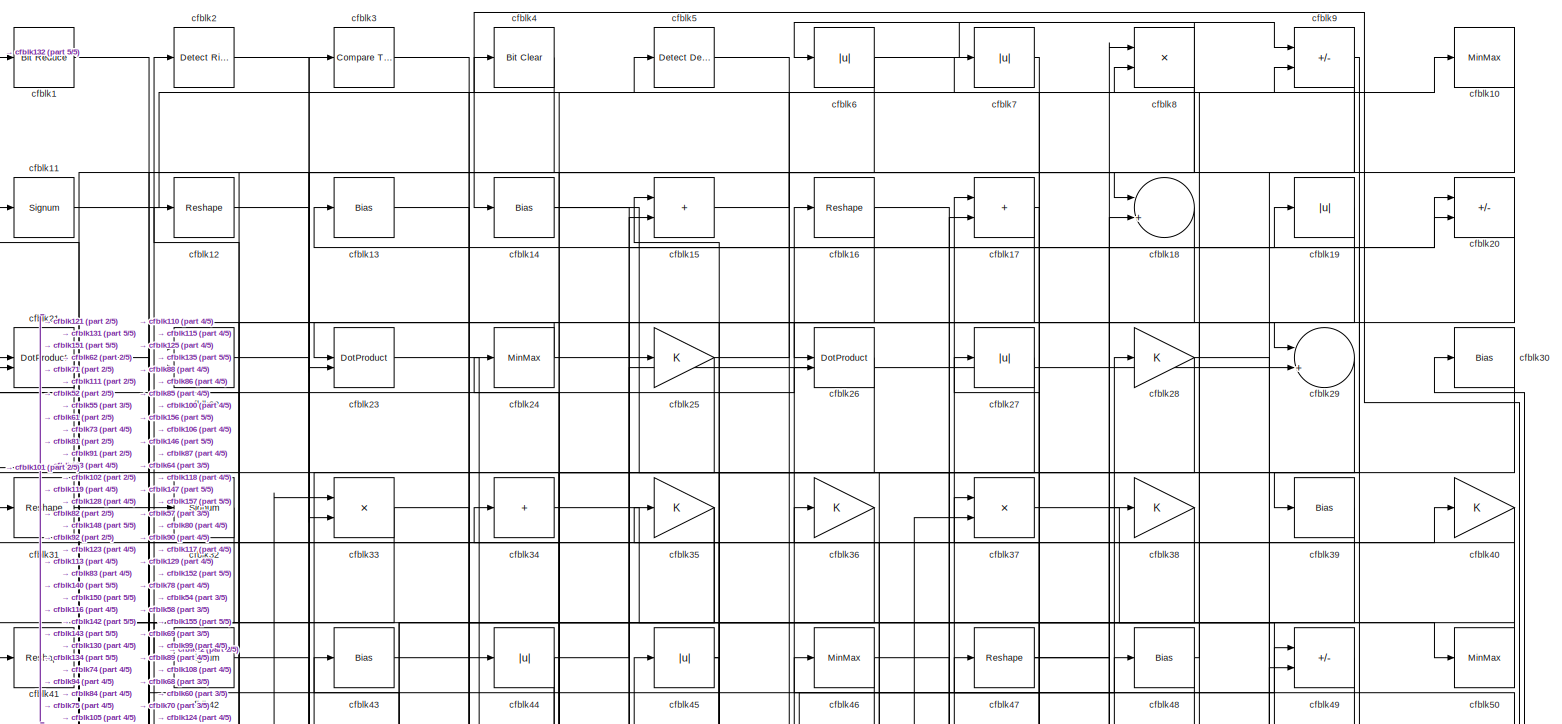
[diagram: root canvas - part 1/5, full width, top band]
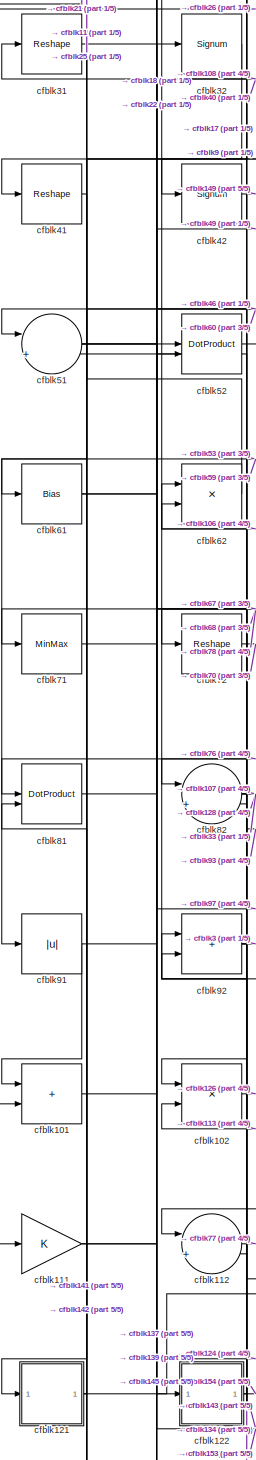
[diagram: root canvas - part 2/5, middle left region]
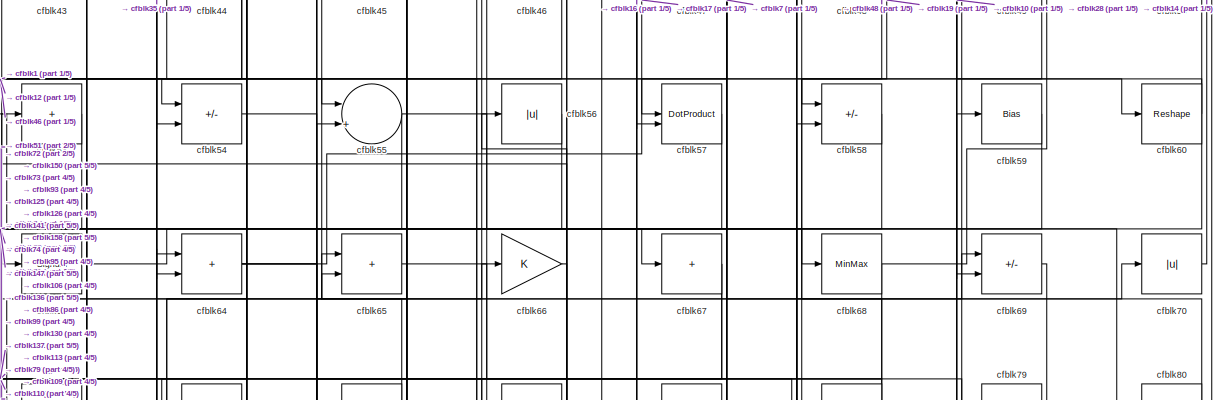
[diagram: root canvas - part 3/5, full width, middle band]
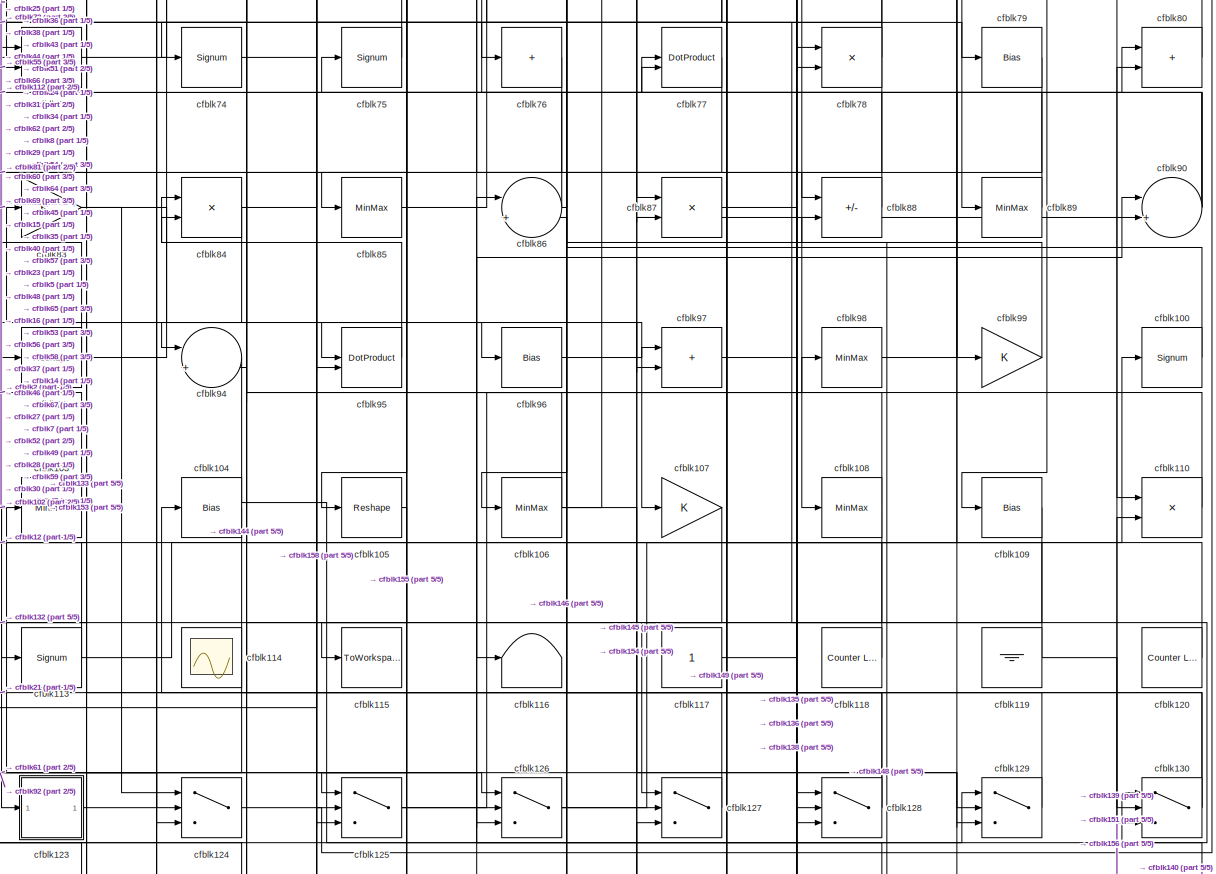
[diagram: root canvas - part 4/5, full width, middle band]
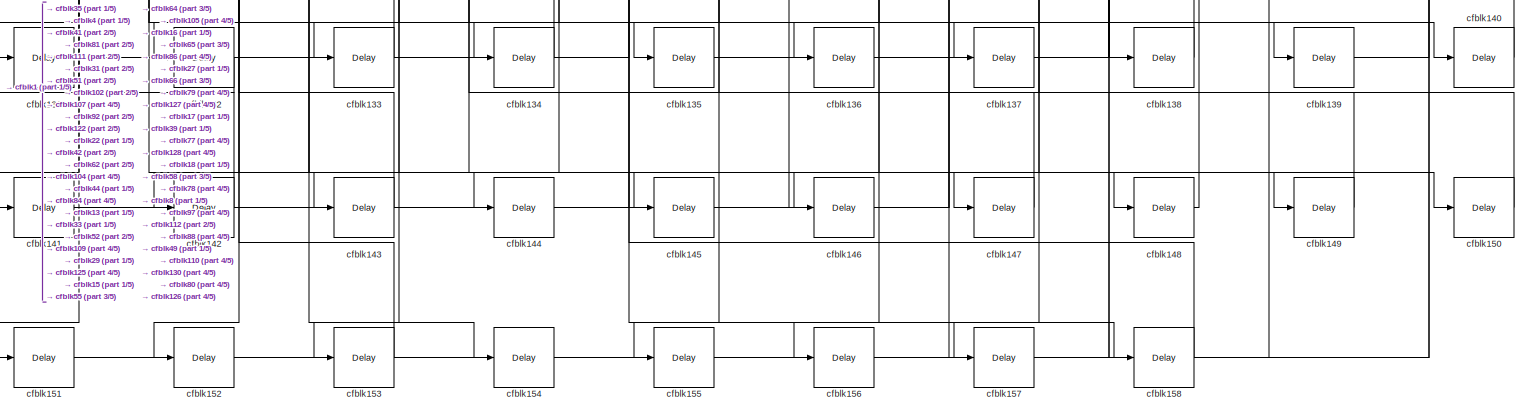
[diagram: root canvas - part 5/5, full width, bottom band]
MODEL slx_c27061066eae
KIND model
CONFIG AbsTol = auto
CONFIG EnableMultiTasking = off
CONFIG FixedStep = auto
CONFIG MaxStep = auto
CONFIG MinStep = auto
CONFIG RelTol = 1e-3
CONFIG SampleTimeConstraint = Unconstrained
CONFIG SolverName = VariableStepAuto
CONFIG StartTime = 0.0
CONFIG StopTime = 10.0
BLOCK [Reference] cfblk1  REF=hdlsllib/Logic and Bit
Operations/Bit Reduce
  SourceBlock = hdlsllib/Logic and Bit\nOperations/Bit Reduce
  SourceType = Bit Reduce
BLOCK [MinMax] cfblk10
BLOCK [Signum] cfblk100
BLOCK [Sum] cfblk101
  IconShape = rectangular
BLOCK [Product] cfblk102
  Inputs = */
  RndMeth = Zero
  SaturateOnIntegerOverflow = on
BLOCK [MinMax] cfblk103
BLOCK [Bias] cfblk104
  Bias = 0.0
  SaturateOnIntegerOverflow = off
BLOCK [Reshape] cfblk105
BLOCK [MinMax] cfblk106
BLOCK [Gain] cfblk107
BLOCK [MinMax] cfblk108
BLOCK [Bias] cfblk109
  Bias = 0.0
  SaturateOnIntegerOverflow = off
BLOCK [Signum] cfblk11
BLOCK [Product] cfblk110
  Inputs = */
  RndMeth = Zero
  SaturateOnIntegerOverflow = on
BLOCK [Gain] cfblk111
BLOCK [Sum] cfblk112
  Inputs = |++
BLOCK [Signum] cfblk113
BLOCK [Scope] cfblk114
  Floating = on
  NumInputPorts = 1
  ScopeSpecificationString = Simulink.scopes.TimeScopeBlockCfg('CurrentConfiguration', extmgr.ConfigurationSet(extmgr.Configuration('Core','General UI',true,'FigureColor',[0.156862745098039 0.156862745098039 0.156862745098039]),extmgr.Configuration('Core','Source UI',true),extmgr.Configuration('Sources','WiredSimulink',true,'DataLoggingVariableName','ScopeData1','DataLoggingSaveFormat','StructureWithTime','DataLoggingLimitDat...<+2713ch>
BLOCK [ToWorkspace] cfblk115
  MaxDataPoints = inf
  SampleTime = -1
  SaveFormat = Timeseries
  VariableName = simout
BLOCK [Terminator] cfblk116
BLOCK [Constant] cfblk117
  SampleTime = -1
BLOCK [Reference] cfblk118  REF=hdlsllib/Sources/Counter
Limited
  SourceBlock = hdlsllib/Sources/Counter\nLimited
  SourceType = Counter Limited
BLOCK [Ground] cfblk119
BLOCK [Reshape] cfblk12
BLOCK [Reference] cfblk120  REF=hdlsllib/Sources/Counter
Limited
  SourceBlock = hdlsllib/Sources/Counter\nLimited
  SourceType = Counter Limited
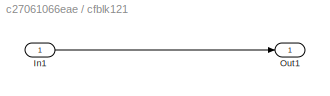
BLOCK [SubSystem] cfblk121
  LibrarySourceBlock = hdlsllib/Ports &\nSubsystems/Subsystem
BLOCK [Inport] cfblk121/In1
BLOCK [Outport] cfblk121/Out1
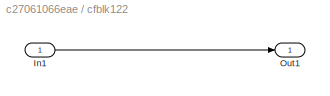
BLOCK [SubSystem] cfblk122
  LibrarySourceBlock = hdlsllib/Ports &\nSubsystems/Subsystem
BLOCK [Inport] cfblk122/In1
BLOCK [Outport] cfblk122/Out1
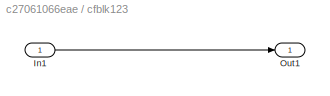
BLOCK [SubSystem] cfblk123
  LibrarySourceBlock = hdlsllib/Ports &\nSubsystems/Subsystem
BLOCK [Inport] cfblk123/In1
BLOCK [Outport] cfblk123/Out1
BLOCK [Switch] cfblk124
  InputSameDT = off
  SaturateOnIntegerOverflow = off
BLOCK [Switch] cfblk125
  InputSameDT = off
  SaturateOnIntegerOverflow = off
BLOCK [Switch] cfblk126
  InputSameDT = off
  SaturateOnIntegerOverflow = off
BLOCK [Switch] cfblk127
  InputSameDT = off
  SaturateOnIntegerOverflow = off
BLOCK [Switch] cfblk128
  InputSameDT = off
  SaturateOnIntegerOverflow = off
BLOCK [Switch] cfblk129
  InputSameDT = off
  SaturateOnIntegerOverflow = off
BLOCK [Bias] cfblk13
  Bias = 0.0
  SaturateOnIntegerOverflow = off
BLOCK [Switch] cfblk130
  InputSameDT = off
  SaturateOnIntegerOverflow = off
BLOCK [Delay] cfblk131
  InputPortMap = u0
  SampleTime = 1
BLOCK [Delay] cfblk132
  InputPortMap = u0
  SampleTime = 1
BLOCK [Delay] cfblk133
  InputPortMap = u0
  SampleTime = 1
BLOCK [Delay] cfblk134
  InputPortMap = u0
  SampleTime = 1
BLOCK [Delay] cfblk135
  InputPortMap = u0
  SampleTime = 1
BLOCK [Delay] cfblk136
  InputPortMap = u0
  SampleTime = 1
BLOCK [Delay] cfblk137
  InputPortMap = u0
  SampleTime = 1
BLOCK [Delay] cfblk138
  InputPortMap = u0
  SampleTime = 1
BLOCK [Delay] cfblk139
  InputPortMap = u0
  SampleTime = 1
BLOCK [Bias] cfblk14
  Bias = 0.0
  SaturateOnIntegerOverflow = off
BLOCK [Delay] cfblk140
  InputPortMap = u0
  SampleTime = 1
BLOCK [Delay] cfblk141
  InputPortMap = u0
  SampleTime = 1
BLOCK [Delay] cfblk142
  InputPortMap = u0
  SampleTime = 1
BLOCK [Delay] cfblk143
  InputPortMap = u0
  SampleTime = 1
BLOCK [Delay] cfblk144
  InputPortMap = u0
  SampleTime = 1
BLOCK [Delay] cfblk145
  InputPortMap = u0
  SampleTime = 1
BLOCK [Delay] cfblk146
  InputPortMap = u0
  SampleTime = 1
BLOCK [Delay] cfblk147
  InputPortMap = u0
  SampleTime = 1
BLOCK [Delay] cfblk148
  InputPortMap = u0
  SampleTime = 1
BLOCK [Delay] cfblk149
  InputPortMap = u0
  SampleTime = 1
BLOCK [Sum] cfblk15
  IconShape = rectangular
BLOCK [Delay] cfblk150
  InputPortMap = u0
  SampleTime = 1
BLOCK [Delay] cfblk151
  InputPortMap = u0
  SampleTime = 1
BLOCK [Delay] cfblk152
  InputPortMap = u0
  SampleTime = 1
BLOCK [Delay] cfblk153
  InputPortMap = u0
  SampleTime = 1
BLOCK [Delay] cfblk154
  InputPortMap = u0
  SampleTime = 1
BLOCK [Delay] cfblk155
  InputPortMap = u0
  SampleTime = 1
BLOCK [Delay] cfblk156
  InputPortMap = u0
  SampleTime = 1
BLOCK [Delay] cfblk157
  InputPortMap = u0
  SampleTime = 1
BLOCK [Delay] cfblk158
  InputPortMap = u0
  SampleTime = 1
BLOCK [Reshape] cfblk16
BLOCK [Sum] cfblk17
  IconShape = rectangular
BLOCK [Sum] cfblk18
  Inputs = |++
BLOCK [Abs] cfblk19
  SaturateOnIntegerOverflow = off
BLOCK [Reference] cfblk2  REF=hdlsllib/Logic and Bit
Operations/Detect Rise
Nonnegative
  SourceBlock = hdlsllib/Logic and Bit\nOperations/Detect Rise\nNonnegative
  SourceType = Detect Rise Nonnegative
BLOCK [Sum] cfblk20
  IconShape = rectangular
  Inputs = +-
BLOCK [DotProduct] cfblk21
  OutDataTypeStr = Inherit: Inherit via internal rule
BLOCK [Sum] cfblk22
  IconShape = rectangular
BLOCK [DotProduct] cfblk23
  OutDataTypeStr = Inherit: Inherit via internal rule
BLOCK [MinMax] cfblk24
BLOCK [Gain] cfblk25
BLOCK [DotProduct] cfblk26
  OutDataTypeStr = Inherit: Inherit via internal rule
BLOCK [Abs] cfblk27
  SaturateOnIntegerOverflow = off
BLOCK [Gain] cfblk28
BLOCK [Sum] cfblk29
  Inputs = |++
BLOCK [Reference] cfblk3  REF=hdlsllib/Logic and Bit
Operations/Compare
To Constant
  SourceBlock = hdlsllib/Logic and Bit\nOperations/Compare\nTo Constant
  SourceType = Compare To Constant
BLOCK [Bias] cfblk30
  Bias = 0.0
  SaturateOnIntegerOverflow = off
BLOCK [Reshape] cfblk31
BLOCK [Signum] cfblk32
BLOCK [Product] cfblk33
  Inputs = */
  RndMeth = Zero
  SaturateOnIntegerOverflow = on
BLOCK [Sum] cfblk34
  IconShape = rectangular
  Inputs = +
BLOCK [Gain] cfblk35
BLOCK [Gain] cfblk36
BLOCK [Product] cfblk37
  Inputs = */
  RndMeth = Zero
  SaturateOnIntegerOverflow = on
BLOCK [Gain] cfblk38
BLOCK [Bias] cfblk39
  Bias = 0.0
  SaturateOnIntegerOverflow = off
BLOCK [Reference] cfblk4  REF=simulink/Logic and Bit
Operations/Bit Clear
  LibrarySourceBlock = hdlsllib/Logic and Bit\nOperations/Bit Clear
  SourceBlock = simulink/Logic and Bit\nOperations/Bit Clear
  SourceType = Bit Clear
BLOCK [Gain] cfblk40
BLOCK [Reshape] cfblk41
BLOCK [Signum] cfblk42
BLOCK [Bias] cfblk43
  Bias = 0.0
  SaturateOnIntegerOverflow = off
BLOCK [Abs] cfblk44
  SaturateOnIntegerOverflow = off
BLOCK [Abs] cfblk45
  SaturateOnIntegerOverflow = off
BLOCK [MinMax] cfblk46
BLOCK [Reshape] cfblk47
BLOCK [Bias] cfblk48
  Bias = 0.0
  SaturateOnIntegerOverflow = off
BLOCK [Sum] cfblk49
  IconShape = rectangular
  Inputs = +-
BLOCK [Reference] cfblk5  REF=simulink/Logic and Bit
Operations/Detect
Decrease
  LibrarySourceBlock = hdlsllib/Logic and Bit\nOperations/Detect\nDecrease
  SourceBlock = simulink/Logic and Bit\nOperations/Detect\nDecrease
  SourceType = Detect Decrease
BLOCK [MinMax] cfblk50
BLOCK [Sum] cfblk51
  Inputs = |++
BLOCK [DotProduct] cfblk52
  OutDataTypeStr = Inherit: Inherit via internal rule
BLOCK [Sum] cfblk53
  IconShape = rectangular
  Inputs = +
BLOCK [Sum] cfblk54
  IconShape = rectangular
  Inputs = +-
BLOCK [Sum] cfblk55
  Inputs = |++
BLOCK [Abs] cfblk56
  SaturateOnIntegerOverflow = off
BLOCK [DotProduct] cfblk57
  OutDataTypeStr = Inherit: Inherit via internal rule
BLOCK [Sum] cfblk58
  IconShape = rectangular
  Inputs = +-
BLOCK [Bias] cfblk59
  Bias = 0.0
  SaturateOnIntegerOverflow = off
BLOCK [Abs] cfblk6
  SaturateOnIntegerOverflow = off
BLOCK [Reshape] cfblk60
BLOCK [Bias] cfblk61
  Bias = 0.0
  SaturateOnIntegerOverflow = off
BLOCK [Product] cfblk62
  Inputs = */
  RndMeth = Zero
  SaturateOnIntegerOverflow = on
BLOCK [Signum] cfblk63
BLOCK [Sum] cfblk64
  IconShape = rectangular
BLOCK [Sum] cfblk65
  IconShape = rectangular
BLOCK [Gain] cfblk66
BLOCK [Sum] cfblk67
  IconShape = rectangular
  Inputs = +
BLOCK [MinMax] cfblk68
BLOCK [Sum] cfblk69
  IconShape = rectangular
  Inputs = +-
BLOCK [Abs] cfblk7
  SaturateOnIntegerOverflow = off
BLOCK [Abs] cfblk70
  SaturateOnIntegerOverflow = off
BLOCK [MinMax] cfblk71
BLOCK [Reshape] cfblk72
BLOCK [Sum] cfblk73
  IconShape = rectangular
BLOCK [Signum] cfblk74
BLOCK [Signum] cfblk75
BLOCK [Sum] cfblk76
  IconShape = rectangular
  Inputs = +
BLOCK [DotProduct] cfblk77
  OutDataTypeStr = Inherit: Inherit via internal rule
BLOCK [Product] cfblk78
  Inputs = */
  RndMeth = Zero
  SaturateOnIntegerOverflow = on
BLOCK [Bias] cfblk79
  Bias = 0.0
  SaturateOnIntegerOverflow = off
BLOCK [Product] cfblk8
  Inputs = */
  RndMeth = Zero
  SaturateOnIntegerOverflow = on
BLOCK [Sum] cfblk80
  IconShape = rectangular
BLOCK [DotProduct] cfblk81
  OutDataTypeStr = Inherit: Inherit via internal rule
BLOCK [Sum] cfblk82
  Inputs = |++
BLOCK [Gain] cfblk83
BLOCK [Product] cfblk84
  Inputs = */
  RndMeth = Zero
  SaturateOnIntegerOverflow = on
BLOCK [MinMax] cfblk85
BLOCK [Sum] cfblk86
  Inputs = |++
BLOCK [Product] cfblk87
  Inputs = */
  RndMeth = Zero
  SaturateOnIntegerOverflow = on
BLOCK [Sum] cfblk88
  IconShape = rectangular
  Inputs = +-
BLOCK [MinMax] cfblk89
BLOCK [Sum] cfblk9
  IconShape = rectangular
  Inputs = +-
BLOCK [Sum] cfblk90
  Inputs = |++
BLOCK [Abs] cfblk91
  SaturateOnIntegerOverflow = off
BLOCK [Sum] cfblk92
  IconShape = rectangular
BLOCK [Reshape] cfblk93
BLOCK [Sum] cfblk94
  Inputs = |++
BLOCK [DotProduct] cfblk95
  OutDataTypeStr = Inherit: Inherit via internal rule
BLOCK [Bias] cfblk96
  Bias = 0.0
  SaturateOnIntegerOverflow = off
BLOCK [Sum] cfblk97
  IconShape = rectangular
BLOCK [MinMax] cfblk98
BLOCK [Gain] cfblk99
LINE cfblk100:1 -> cfblk36:1
LINE cfblk101:1 -> cfblk32:1
LINE cfblk102:1 -> cfblk126:1
LINE cfblk103:1 -> cfblk2:1
LINE cfblk104:1 -> cfblk153:1
LINE cfblk105:1 -> cfblk155:1
NET cfblk106:1 -> cfblk129:3, cfblk37:2, cfblk62:1
LINE cfblk107:1 -> cfblk132:1
NET cfblk108:1 -> cfblk127:1, cfblk31:1
LINE cfblk109:1 -> cfblk144:1
LINE cfblk10:1 -> cfblk69:2
LINE cfblk110:1 -> cfblk15:1
NET cfblk111:1 -> cfblk145:1, cfblk26:2
LINE cfblk112:1 -> cfblk77:1
NET cfblk113:1 -> cfblk59:1, cfblk82:2
LINE cfblk117:1 -> cfblk38:1
LINE cfblk118:1 -> cfblk37:1
NET cfblk119:1 -> cfblk12:1, cfblk130:2
LINE cfblk11:1 -> cfblk5:1
LINE cfblk120:1 -> cfblk84:1
LINE cfblk121/In1:1 -> cfblk121/Out1:1
NET cfblk121:1 -> cfblk21:2, cfblk25:1
LINE cfblk122/In1:1 -> cfblk122/Out1:1
NET cfblk122:1 -> cfblk154:1, cfblk92:1
LINE cfblk123/In1:1 -> cfblk123/Out1:1
LINE cfblk123:1 -> cfblk44:1
LINE cfblk124:1 -> cfblk30:1
NET cfblk125:1 -> cfblk90:1, cfblk98:1
NET cfblk126:1 -> cfblk100:1, cfblk90:2
LINE cfblk127:1 -> cfblk103:1
NET cfblk128:1 -> cfblk21:1, cfblk86:2
LINE cfblk129:1 -> cfblk104:1
LINE cfblk12:1 -> cfblk54:2
NET cfblk130:1 -> cfblk34:1, cfblk75:1
LINE cfblk131:1 -> cfblk15:2
LINE cfblk132:1 -> cfblk1:1
LINE cfblk133:1 -> cfblk62:2
LINE cfblk134:1 -> cfblk52:1
LINE cfblk135:1 -> cfblk128:2
LINE cfblk136:1 -> cfblk78:1
LINE cfblk137:1 -> cfblk58:2
LINE cfblk138:1 -> cfblk112:2
LINE cfblk139:1 -> cfblk80:2
LINE cfblk13:1 -> cfblk140:1
LINE cfblk140:1 -> cfblk126:2
LINE cfblk141:1 -> cfblk55:2
LINE cfblk142:1 -> cfblk81:2
LINE cfblk143:1 -> cfblk102:2
LINE cfblk144:1 -> cfblk86:1
LINE cfblk145:1 -> cfblk127:3
LINE cfblk146:1 -> cfblk17:2
LINE cfblk147:1 -> cfblk65:2
LINE cfblk148:1 -> cfblk88:2
LINE cfblk149:1 -> cfblk77:2
NET cfblk14:1 -> cfblk20:2, cfblk87:1
LINE cfblk150:1 -> cfblk64:1
LINE cfblk151:1 -> cfblk110:2
LINE cfblk152:1 -> cfblk8:1
LINE cfblk153:1 -> cfblk92:2
LINE cfblk154:1 -> cfblk127:2
LINE cfblk155:1 -> cfblk49:2
LINE cfblk156:1 -> cfblk130:3
LINE cfblk157:1 -> cfblk18:2
LINE cfblk158:1 -> cfblk125:2
LINE cfblk15:1 -> cfblk18:1
NET cfblk16:1 -> cfblk135:1, cfblk57:2
NET cfblk17:1 -> cfblk102:1, cfblk157:1
LINE cfblk18:1 -> cfblk52:2
LINE cfblk19:1 -> cfblk58:1
LINE cfblk1:1 -> cfblk55:1
LINE cfblk20:1 -> cfblk26:1
NET cfblk21:1 -> cfblk111:1, cfblk73:1
LINE cfblk22:1 -> cfblk148:1
LINE cfblk23:1 -> cfblk116:1
NET cfblk24:1 -> cfblk23:1, cfblk29:1
NET cfblk25:1 -> cfblk10:1, cfblk123:1
LINE cfblk26:1 -> cfblk101:2
LINE cfblk27:1 -> cfblk156:1
NET cfblk28:1 -> cfblk125:1, cfblk60:1
LINE cfblk29:1 -> cfblk134:1
LINE cfblk2:1 -> cfblk68:1
LINE cfblk30:1 -> cfblk94:1
LINE cfblk31:1 -> cfblk139:1
LINE cfblk32:1 -> cfblk41:1
NET cfblk33:1 -> cfblk150:1, cfblk71:1
LINE cfblk34:1 -> cfblk89:1
NET cfblk35:1 -> cfblk131:1, cfblk64:2
LINE cfblk36:1 -> cfblk113:1
LINE cfblk37:1 -> cfblk99:1
LINE cfblk38:1 -> cfblk83:1
LINE cfblk39:1 -> cfblk147:1
LINE cfblk3:1 -> cfblk50:1
LINE cfblk40:1 -> cfblk115:1
LINE cfblk41:1 -> cfblk141:1
LINE cfblk42:1 -> cfblk149:1
LINE cfblk43:1 -> cfblk9:2
NET cfblk44:1 -> cfblk142:1, cfblk143:1, cfblk20:1
NET cfblk45:1 -> cfblk105:1, cfblk85:1
NET cfblk46:1 -> cfblk61:1, cfblk87:2
NET cfblk47:1 -> cfblk129:2, cfblk19:1
NET cfblk48:1 -> cfblk54:1, cfblk8:2
LINE cfblk49:1 -> cfblk108:1
LINE cfblk4:1 -> cfblk151:1
LINE cfblk50:1 -> cfblk4:1
NET cfblk51:1 -> cfblk137:1, cfblk76:1, cfblk97:2
LINE cfblk52:1 -> cfblk78:2
LINE cfblk53:1 -> cfblk82:1
LINE cfblk54:1 -> cfblk79:1
NET cfblk55:1 -> cfblk110:1, cfblk73:2
LINE cfblk56:1 -> cfblk63:1
LINE cfblk57:1 -> cfblk95:1
LINE cfblk58:1 -> cfblk106:1
LINE cfblk59:1 -> cfblk91:1
LINE cfblk5:1 -> cfblk88:1
NET cfblk60:1 -> cfblk125:3, cfblk46:1, cfblk51:1
NET cfblk61:1 -> cfblk124:3, cfblk22:1
LINE cfblk62:1 -> cfblk11:1
LINE cfblk63:1 -> cfblk67:1
NET cfblk64:1 -> cfblk126:3, cfblk158:1, cfblk17:1
LINE cfblk65:1 -> cfblk130:1
LINE cfblk66:1 -> cfblk136:1
NET cfblk67:1 -> cfblk112:1, cfblk95:2
NET cfblk68:1 -> cfblk121:1, cfblk13:1
LINE cfblk69:1 -> cfblk109:1
NET cfblk6:1 -> cfblk33:2, cfblk9:1
LINE cfblk70:1 -> cfblk14:1
LINE cfblk71:1 -> cfblk122:1
LINE cfblk72:1 -> cfblk70:1
LINE cfblk73:1 -> cfblk65:1
LINE cfblk74:1 -> cfblk69:1
LINE cfblk75:1 -> cfblk45:1
LINE cfblk76:1 -> cfblk81:1
LINE cfblk77:1 -> cfblk93:1
NET cfblk78:1 -> cfblk28:1, cfblk72:1, cfblk94:2
LINE cfblk79:1 -> cfblk146:1
LINE cfblk7:1 -> cfblk57:1
LINE cfblk80:1 -> cfblk47:1
LINE cfblk81:1 -> cfblk49:1
NET cfblk82:1 -> cfblk107:1, cfblk128:3, cfblk33:1
NET cfblk83:1 -> cfblk124:1, cfblk96:1
NET cfblk84:1 -> cfblk133:1, cfblk29:2
LINE cfblk85:1 -> cfblk48:1
NET cfblk86:1 -> cfblk16:1, cfblk56:1
LINE cfblk87:1 -> cfblk128:1
LINE cfblk88:1 -> cfblk35:1
LINE cfblk89:1 -> cfblk27:1
NET cfblk8:1 -> cfblk23:2, cfblk6:1, cfblk74:1
NET cfblk90:1 -> cfblk24:1, cfblk43:1, cfblk7:1
NET cfblk91:1 -> cfblk101:1, cfblk40:1
NET cfblk92:1 -> cfblk124:2, cfblk152:1, cfblk3:1
NET cfblk93:1 -> cfblk51:2, cfblk66:1
LINE cfblk94:1 -> cfblk129:1
LINE cfblk95:1 -> cfblk84:2
LINE cfblk96:1 -> cfblk97:1
LINE cfblk97:1 -> cfblk138:1
LINE cfblk98:1 -> cfblk80:1
LINE cfblk99:1 -> cfblk53:1
NET cfblk9:1 -> cfblk22:2, cfblk39:1, cfblk42:1
note: NET lines group one-source signal fan-out (src -> all destinations, sorted); 1:1 wires keep LINE
